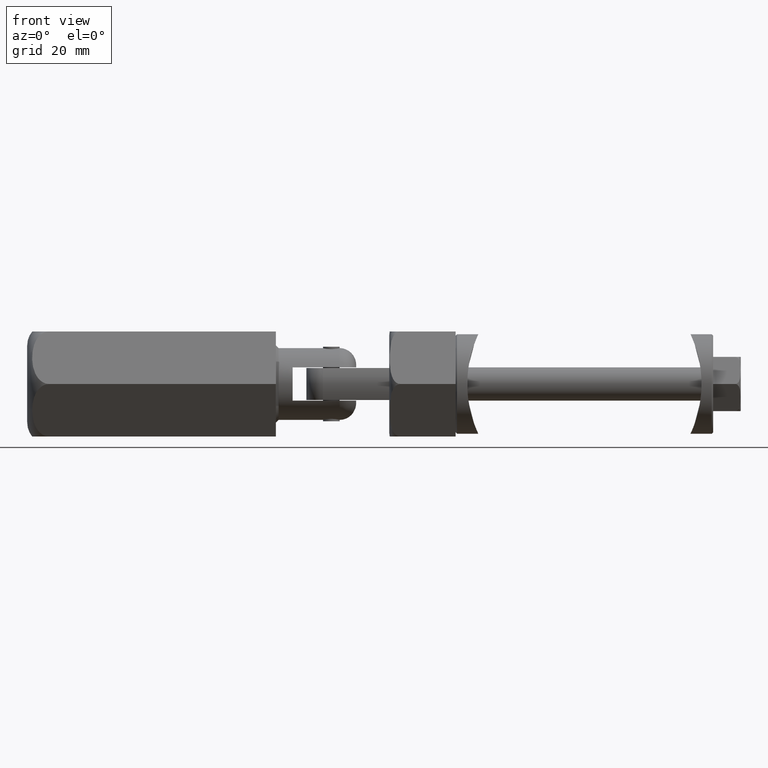
[diagram: clean part render]
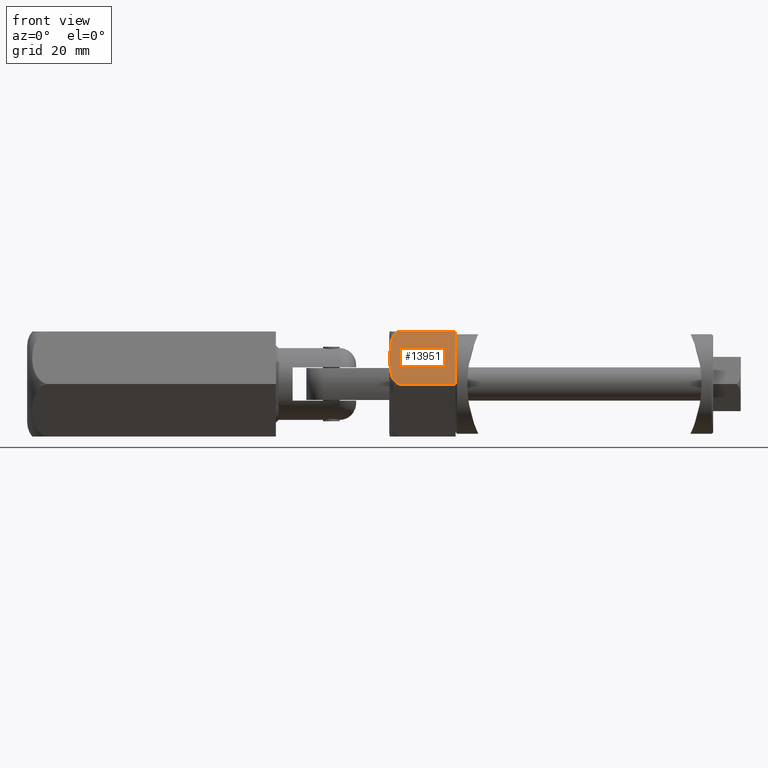
[diagram: same view with one face highlighted and labeled with its STEP entity id]
A machine part, front view. The second image highlights one B-rep face of the part: STEP entity #13951.
In plain terms, the highlighted planar face has unit normal (0, 0.866, -0.5).
Its self-contained STEP definition (entity closure, byte-faithful):
#333 = CARTESIAN_POINT ( 'NONE',  ( 0.02330133180895182718, -10.95620208441053833, 10.26401890429809605 ) ) ;
#1124 = ORIENTED_EDGE ( 'NONE', *, *, #13567, .T. ) ;
#1976 = CARTESIAN_POINT ( 'NONE',  ( 0.9690206753403728390, -10.41019076684483480, 11.35117518770045031 ) ) ;
#2106 = CARTESIAN_POINT ( 'NONE',  ( 5.208180796922500910, -7.962710529511475954, 11.92829858589938397 ) ) ;
#2300 = CARTESIAN_POINT ( 'NONE',  ( 5.660899274052084706, -7.701333394873596916, 11.91782240567438755 ) ) ;
#2490 = DIRECTION ( 'NONE',  ( -0.8660254037844379305, -0.5000000000000012212, -2.985687800686721840E-33 ) ) ;
#2683 = VERTEX_POINT ( 'NONE', #17759 ) ;
#3161 = VECTOR ( 'NONE', #15072, 1000.000000000000000 ) ;
#3496 = CARTESIAN_POINT ( 'NONE',  ( 7.016375749902076464, -6.918748686661399638, 11.80944225031881700 ) ) ;
#3765 = CARTESIAN_POINT ( 'NONE',  ( 9.393484117587995286, -5.546324530685025067, 10.50616458219462501 ) ) ;
#4057 = CARTESIAN_POINT ( 'NONE',  ( -8.458740912265488711E-16, -10.96965511460291332, 0.000000000000000000 ) ) ;
#4600 = CARTESIAN_POINT ( 'NONE',  ( -8.458740912265488711E-16, -10.96965511460291332, 0.000000000000000000 ) ) ;
#5687 = CARTESIAN_POINT ( 'NONE',  ( -8.458740912265488711E-16, -10.96965511460291332, 12.00000000000004619 ) ) ;
#6037 = EDGE_CURVE ( 'NONE', #10114, #2683, #17106, .T. ) ;
#6132 = CARTESIAN_POINT ( 'NONE',  ( 9.500000000000000000, -5.484827557301450440, 12.00000000000001066 ) ) ;
#6162 = CARTESIAN_POINT ( 'NONE',  ( 1.181243662208769862, -10.28766376824814266, 11.45004439842704436 ) ) ;
#6871 = AXIS2_PLACEMENT_3D ( 'NONE', #8302, #8363, #2490 ) ;
#7536 = CARTESIAN_POINT ( 'NONE',  ( 0.1086672379174321440, -10.90691605553918819, 10.51096866074480829 ) ) ;
#7663 = CARTESIAN_POINT ( 'NONE',  ( 0.5732801973703981480, -10.63867163833003282, 11.09352661582058275 ) ) ;
#7837 = VERTEX_POINT ( 'NONE', #18103 ) ;
#8302 = CARTESIAN_POINT ( 'NONE',  ( -8.458740912265488711E-16, -10.96965511460291332, 12.00000000000004619 ) ) ;
#8363 = DIRECTION ( 'NONE',  ( -0.5000000000000012212, 0.8660254037844379305, 5.392603844284237125E-33 ) ) ;
#8868 = LINE ( 'NONE', #5687, #12281 ) ;
#8979 = CARTESIAN_POINT ( 'NONE',  ( 4.303590513517799643, -8.484975973141500205, 11.92850409199469475 ) ) ;
#9168 = CARTESIAN_POINT ( 'NONE',  ( 2.948357487886922090, -9.267420125304150602, 11.85946668466851683 ) ) ;
#9267 = VERTEX_POINT ( 'NONE', #4057 ) ;
#9692 = ORIENTED_EDGE ( 'NONE', *, *, #15063, .T. ) ;
#10000 = VECTOR ( 'NONE', #11790, 1000.000000000000114 ) ;
#10059 = EDGE_LOOP ( 'NONE', ( #15207, #1124, #9692, #15615 ) ) ;
#10114 = VERTEX_POINT ( 'NONE', #11714 ) ;
#10451 = CARTESIAN_POINT ( 'NONE',  ( 4.387207150303647344E-14, -10.96965511460288667, 10.13372363806145771 ) ) ;
#10773 = CARTESIAN_POINT ( 'NONE',  ( 8.936578034186762665, -5.810119380931105582, 11.08564774292463717 ) ) ;
#10837 = CARTESIAN_POINT ( 'NONE',  ( 8.541952905853712252, -6.037956305003183921, 11.34541652004254075 ) ) ;
#11321 = LINE ( 'NONE', #6132, #3161 ) ;
#11714 = CARTESIAN_POINT ( 'NONE',  ( -8.458740912265488711E-16, -10.96965511460291332, 10.00000000000000888 ) ) ;
#11790 = DIRECTION ( 'NONE',  ( 0.8660254037844379305, 0.5000000000000012212, 2.985687800686721840E-33 ) ) ;
#12022 = CARTESIAN_POINT ( 'NONE',  ( 1.835532337952670456, -9.909910025179680559, 11.66901284663642890 ) ) ;
#12222 = CARTESIAN_POINT ( 'NONE',  ( 7.899681610115841579, -6.408771810490211607, 11.60465455900878951 ) ) ;
#12281 = VECTOR ( 'NONE', #12788, 1000.000000000000000 ) ;
#12405 = CARTESIAN_POINT ( 'NONE',  ( 6.563988900393464831, -7.179934356003045082, 11.85829195902210564 ) ) ;
#12788 = DIRECTION ( 'NONE',  ( 2.747217888871383579E-32, 1.690114475855316345E-48, -1.000000000000000000 ) ) ;
#13333 = CARTESIAN_POINT ( 'NONE',  ( 0.3864712770007646125, -10.74652581879246682, 10.93279771862620997 ) ) ;
#13567 = EDGE_CURVE ( 'NONE', #10114, #9267, #8868, .T. ) ;
#13820 = LINE ( 'NONE', #4600, #10000 ) ;
#13833 = FACE_OUTER_BOUND ( 'NONE', #10059, .T. ) ;
#13835 = CARTESIAN_POINT ( 'NONE',  ( 9.499999999999959144, -5.484827557301506396, 10.13272897949965490 ) ) ;
#13951 = ADVANCED_FACE ( 'NONE', ( #13833 ), #18509, .F. ) ;
#14781 = CARTESIAN_POINT ( 'NONE',  ( 0.1697574696399700989, -10.87164559380932793, 10.62487409099793823 ) ) ;
#15039 = CARTESIAN_POINT ( 'NONE',  ( 9.334117897262812491, -5.580599633970545703, 10.61818887033517811 ) ) ;
#15063 = EDGE_CURVE ( 'NONE', #9267, #7837, #13820, .T. ) ;
#15072 = DIRECTION ( 'NONE',  ( 2.747217888871383579E-32, 1.690114475855316345E-48, -1.000000000000000000 ) ) ;
#15175 = CARTESIAN_POINT ( 'NONE',  ( 9.119513844951645964, -5.704501341341580378, 10.92654201973942207 ) ) ;
#15207 = ORIENTED_EDGE ( 'NONE', *, *, #6037, .F. ) ;
#15299 = CARTESIAN_POINT ( 'NONE',  ( 7.680642201204814334, -6.535234272188129800, 11.66489135380609632 ) ) ;
#15615 = ORIENTED_EDGE ( 'NONE', *, *, #16790, .F. ) ;
#16358 = CARTESIAN_POINT ( 'NONE',  ( 2.499595801006650575, -9.526512806026468994, 11.81164600213922888 ) ) ;
#16552 = CARTESIAN_POINT ( 'NONE',  ( 9.500000000000003553, -5.484827557301448664, 10.00000000000000178 ) ) ;
#16681 = CARTESIAN_POINT ( 'NONE',  ( 9.477500402085610176, -5.497817706214018330, 10.26022967669228514 ) ) ;
#16790 = EDGE_CURVE ( 'NONE', #2683, #7837, #11321, .T. ) ;
#17106 = B_SPLINE_CURVE_WITH_KNOTS ( 'NONE', 3,
 ( #17494, #10451, #333, #7536, #14781, #13333, #7663, #1976, #6162, #17750, #12022, #16358, #9168, #17625, #8979, #2106, #2300, #12405, #3496, #15299, #12222, #18078, #10837, #10773, #15175, #15039, #3765, #16681, #13835, #16552 ),
 .UNSPECIFIED., .F., .F.,
 ( 4, 2, 2, 2, 2, 2, 2, 2, 2, 2, 2, 2, 2, 2, 4 ),
 ( 1.969591725564851869E-07, 0.0003952753807345939707, 0.0007903538022966315147, 0.001580510645420708880, 0.002370667488544786136, 0.003160824331668863393, 0.004741138017917017472, 0.006321451704165172852, 0.007901765390413328233, 0.009482079076661483613, 0.01027223591978556304, 0.01106239276290964073, 0.01185254960603371668, 0.01224762802759575726, 0.01264270644915779784 ),
 .UNSPECIFIED. ) ;
#17494 = CARTESIAN_POINT ( 'NONE',  ( -8.458740912265488711E-16, -10.96965511460291332, 10.00000000000000888 ) ) ;
#17625 = CARTESIAN_POINT ( 'NONE',  ( 3.850605651059735290, -8.746506905420490696, 11.91821024608994328 ) ) ;
#17750 = CARTESIAN_POINT ( 'NONE',  ( 1.615717051199379473, -10.03682044015868513, 11.60944821489945689 ) ) ;
#17759 = CARTESIAN_POINT ( 'NONE',  ( 9.500000000000003553, -5.484827557301448664, 10.00000000000000178 ) ) ;
#18078 = CARTESIAN_POINT ( 'NONE',  ( 8.330015488606978380, -6.160318429901935566, 11.44500298372937408 ) ) ;
#18103 = CARTESIAN_POINT ( 'NONE',  ( 9.500000000000000000, -5.484827557301455769, 0.000000000000000000 ) ) ;
#18509 = PLANE ( 'NONE',  #6871 ) ;